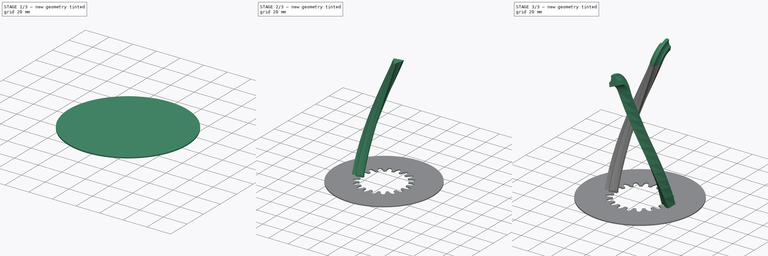
[diagram: build sequence overview — one tinted view per stage of 3, left to right]
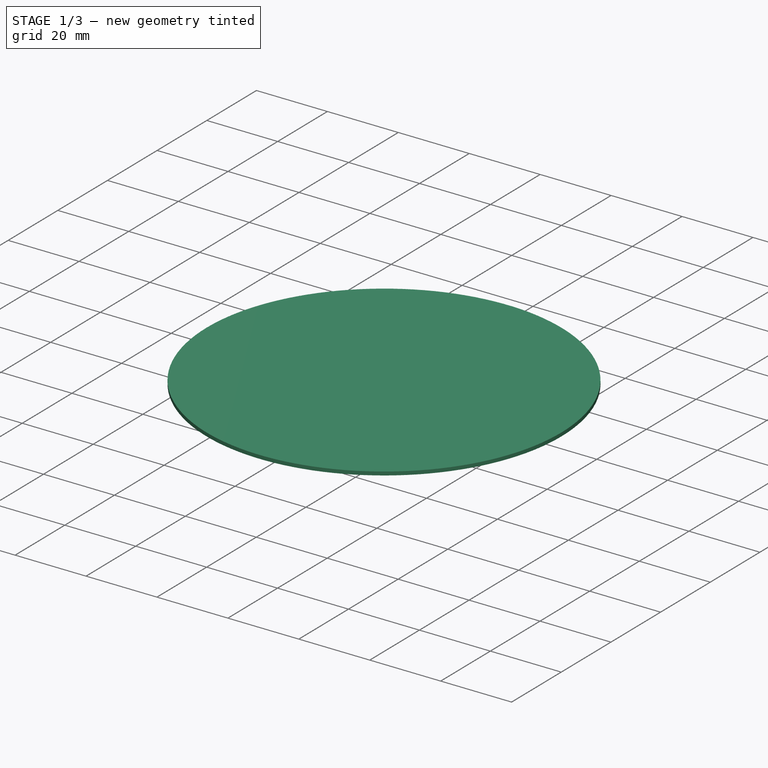
[diagram: stage 1 of 3 — iso view after this stage's code; geometry added in this stage tinted green]
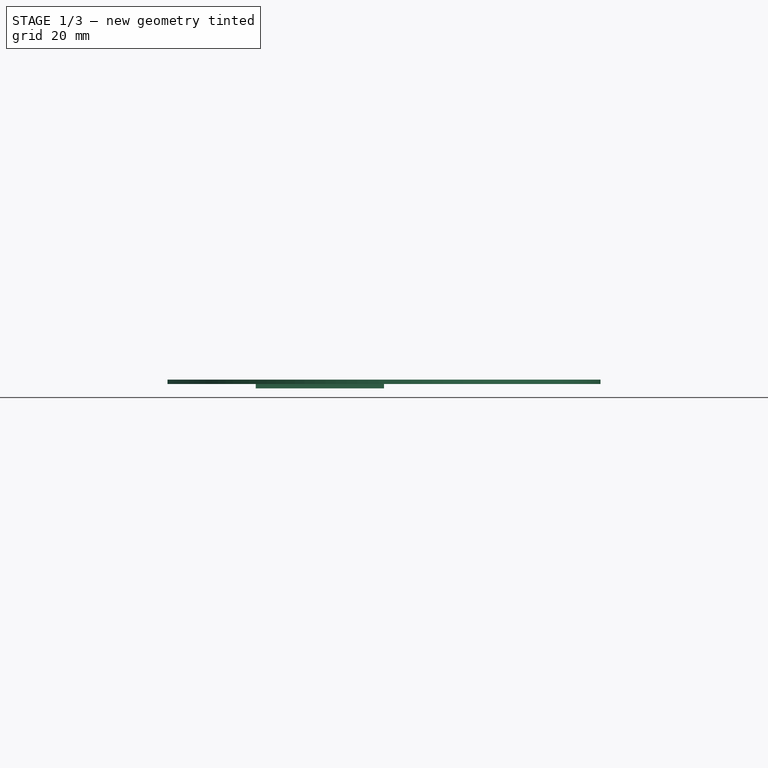
[diagram: stage 1 of 3 — front view after this stage's code; geometry added in this stage tinted green]
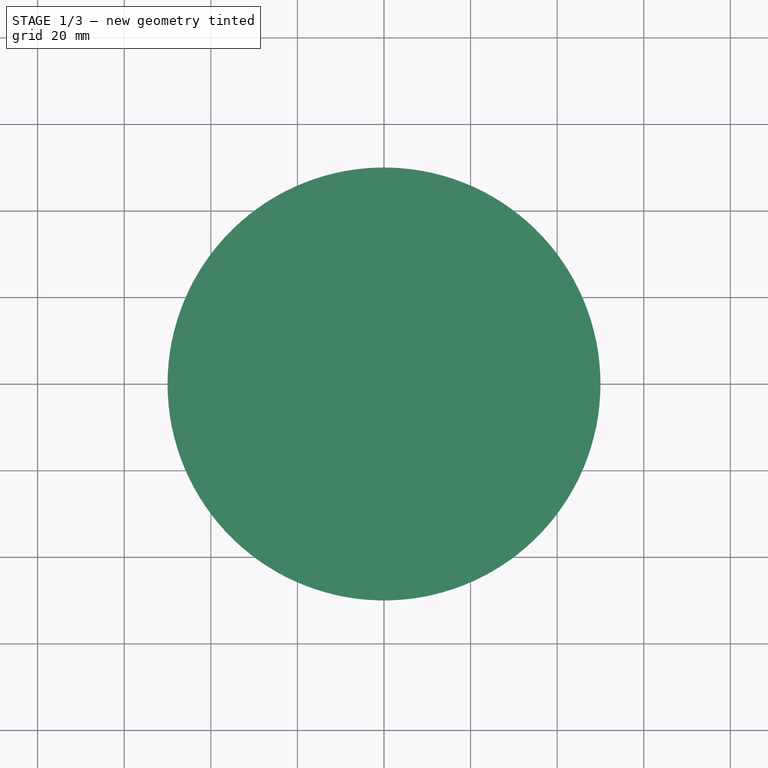
[diagram: stage 1 of 3 — top view after this stage's code; geometry added in this stage tinted green]
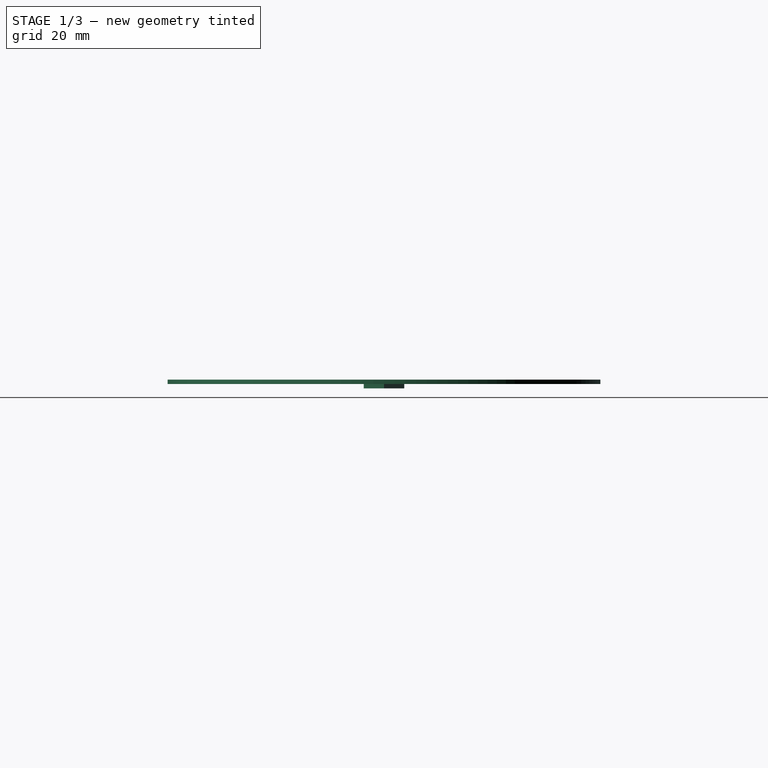
[diagram: stage 1 of 3 — right view after this stage's code; geometry added in this stage tinted green]
FCSTD DOCUMENT  (FreeCAD 0.20R29603 (Git))
Label: a19tooth-LH20deg-Involute-Spline
License: All rights reserved
LicenseURL: http://en.wikipedia.org/wiki/All_rights_reserved
objects: Sketcher::SketchObject×3, PartDesign::Pad×2, PartDesign::Point×2, PartDesign::Line×2, Part::Part2DObjectPython×1, PartDesign::Pocket×1, PartDesign::AdditiveHelix×1, PartDesign::Plane×1, PartDesign::AdditivePipe×1, PartDesign::PolarPattern×1, PartDesign::Body×1
note: 21 computed .brp shape members not serialized (recipe doc carries the construction recipe); baked Part::Feature solids carry a one-line shape summary decoded from their .brp

FEATURE [Part::Part2DObjectPython] InvoluteGear  # Draft 2D object (typed FeaturePython)
  ExternalGear = true
  HighPrecision = true
  Modules = 2.5
  NumberOfTeeth = 19
  PressureAngle = 20
FEATURE [Sketcher::SketchObject] Sketch
  FullyConstrained = true
  MapMode = 5
  Support = -> [XY_Plane]
  expr: .Constraints.PieSlice = 360 / 19 - 1
  sketch-geometry (7):
    g0: LineSegment StartX=0 StartY=0 StartZ=0 EndX=-29.6328 EndY=-4.67942 EndZ=0
    g1: LineSegment StartX=0 StartY=0 StartZ=0 EndX=-30 EndY=0 EndZ=0
    g2: LineSegment StartX=0 StartY=0 StartZ=0 EndX=-29.6328 EndY=4.67942 EndZ=0
    g3: LineSegment StartX=-29.6328 StartY=-4.67942 StartZ=0 EndX=-30 EndY=0 EndZ=0
    g4: LineSegment StartX=-30 StartY=0 StartZ=0 EndX=-29.6328 EndY=4.67942 EndZ=0
    g5: Circle CenterX=0 CenterY=0 CenterZ=0 NormalX=0 NormalY=0 NormalZ=1 AngleXU=0 Radius=30
    g6: LineSegment StartX=-29.6328 StartY=4.67942 StartZ=0 EndX=-29.6328 EndY=-4.67942 EndZ=0
  constraints (17):
    c: Coincident(g3,g0)
    c: Coincident(g3,g1)
    c: Coincident(g4,g1)
    c: Coincident(g4,g2)
    c: Equal(g3,g4)
    c: Horizontal(g1)
    c: Coincident(g1,g0)
    c: Coincident(g2,g0)
    c: Coincident(g0,g-1)
    c: Coincident(g5,g0)
    c: PointOnObject(g1,g5)
    c: PointOnObject(g2,g5)
    c: PointOnObject(g0,g5)
    c: Distance(g1) = 30  'ShaftRadius'
    c: Angle(g2,g0) = 0.313241  'PieSlice'
    c: Coincident(g6,g2)
    c: Coincident(g6,g0)
FEATURE [Sketcher::SketchObject] Sketch002
  FullyConstrained = true
  MapMode = 5
  Support = -> [XY_Plane]
  sketch-geometry (1):
    g0: Circle CenterX=0 CenterY=0 CenterZ=0 NormalX=0 NormalY=0 NormalZ=1 AngleXU=0 Radius=50
  constraints (2):
    c: Coincident(g0,g-1)
    c: Radius(g0) = 50
FEATURE [PartDesign::Pad] Pad001
  Direction = (1,1,1)
  Length = 1
  Length2 = 100
  Profile = -> Sketch002
  Reversed = true
  Type = 0
FEATURE [PartDesign::Pad] Pad
  BaseFeature = -> Pad001
  Direction = (1,1,1)
  Length = 2
  Length2 = 100
  Profile = -> Sketch
  Reversed = true
  Type = 0
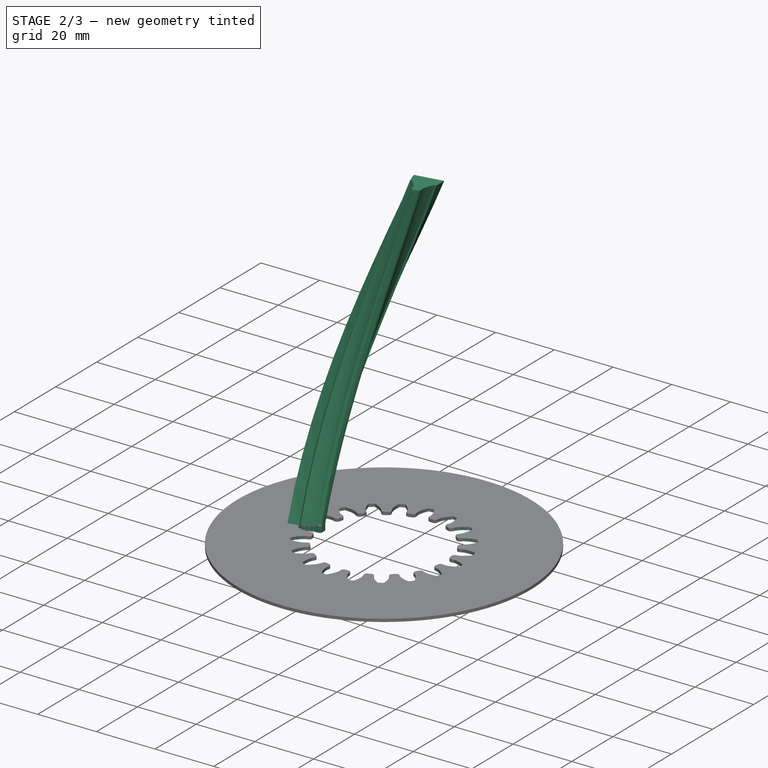
[diagram: stage 2 of 3 — iso view after this stage's code; geometry added in this stage tinted green]
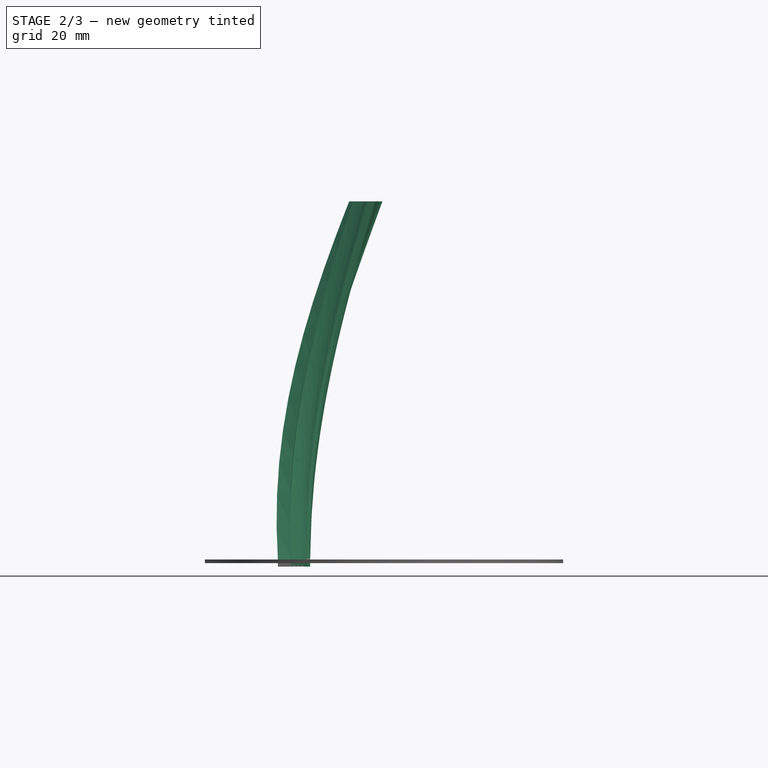
[diagram: stage 2 of 3 — front view after this stage's code; geometry added in this stage tinted green]
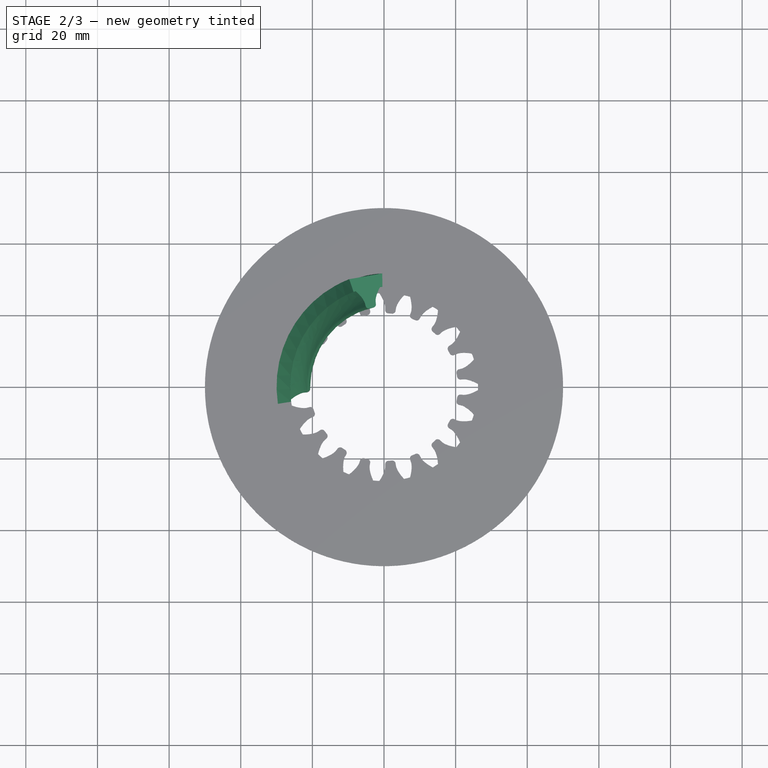
[diagram: stage 2 of 3 — top view after this stage's code; geometry added in this stage tinted green]
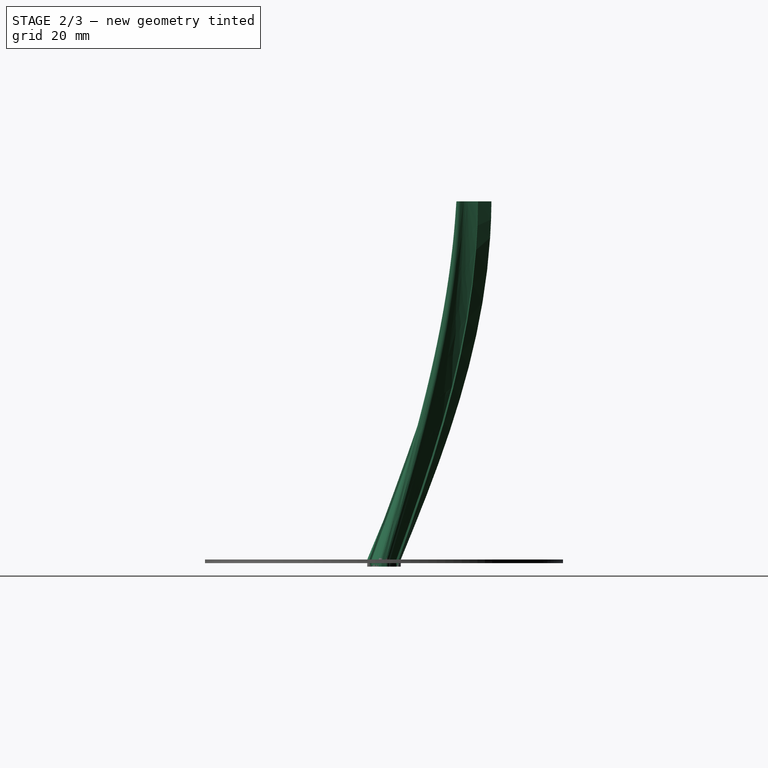
[diagram: stage 2 of 3 — right view after this stage's code; geometry added in this stage tinted green]
FEATURE [PartDesign::Pocket] Pocket
  BaseFeature = -> Pad
  Direction = (1,1,1)
  Length = 5
  Length2 = 100
  Profile = -> InvoluteGear
  Type = 1
FEATURE [PartDesign::AdditiveHelix] AdditiveHelix
  Angle = 0
  Axis = (-3e-16,3e-16,1)
  Base = (0,0,0)
  BaseFeature = -> Pocket
  Growth = 0
  HasBeenEdited = true
  Height = 100
  LeftHanded = true
  Mode = 0
  Outside = false
  Pitch = 449.438
  Profile = -> Pocket [Face4]
  ReferenceAxis = -> Z_Axis
  Turns = 0.2225
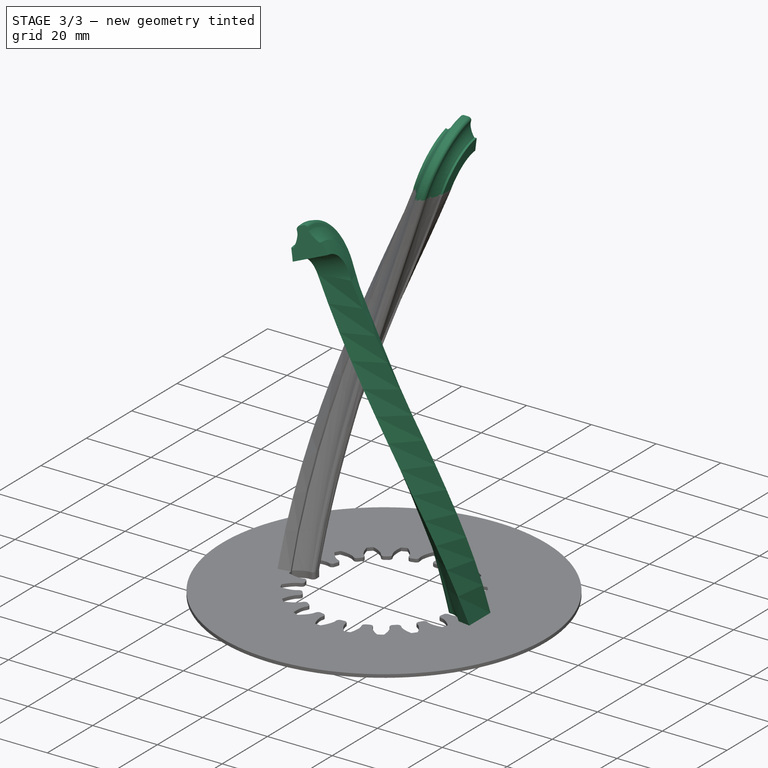
[diagram: stage 3 of 3 — iso view after this stage's code; geometry added in this stage tinted green]
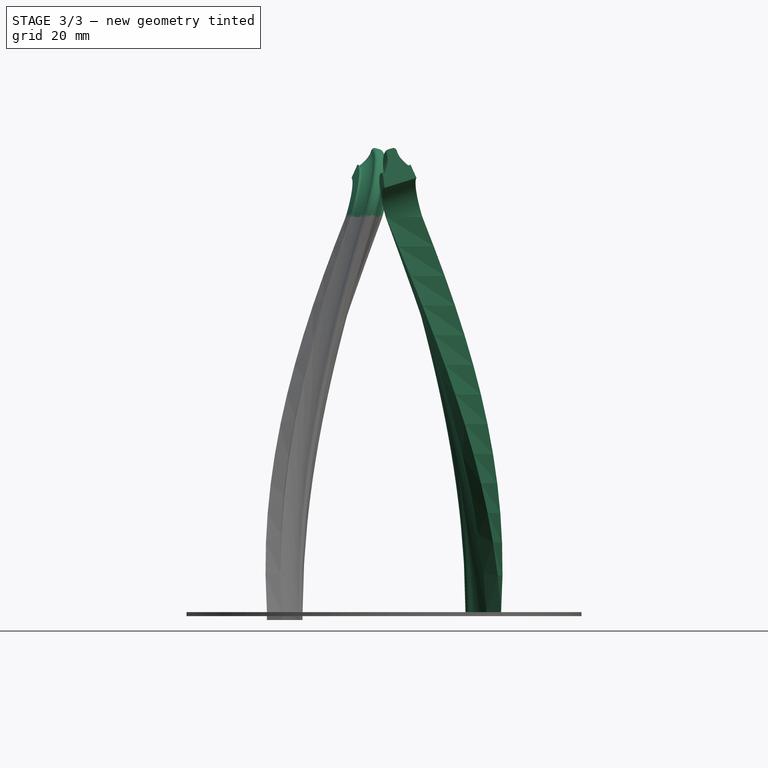
[diagram: stage 3 of 3 — front view after this stage's code; geometry added in this stage tinted green]
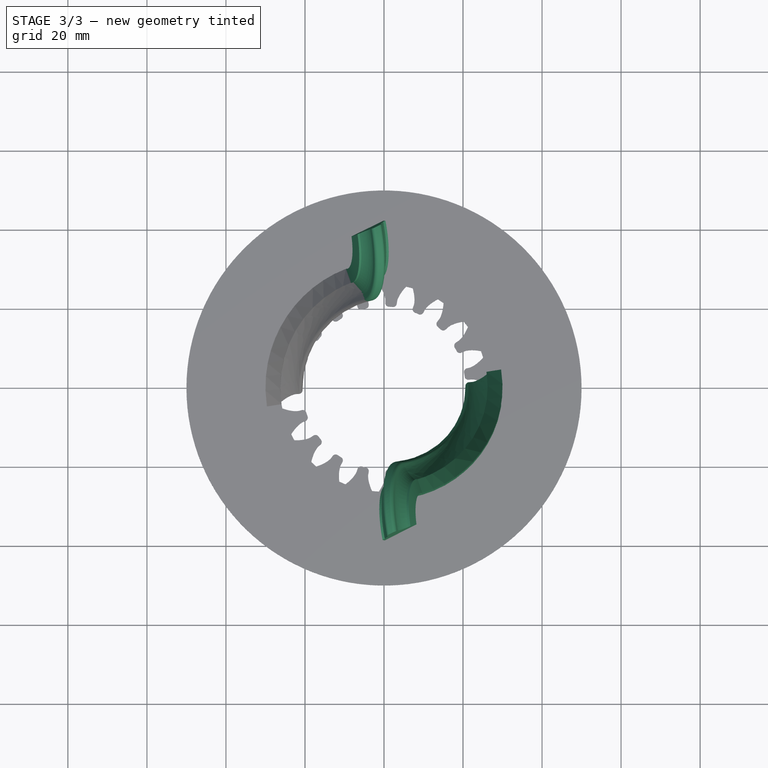
[diagram: stage 3 of 3 — top view after this stage's code; geometry added in this stage tinted green]
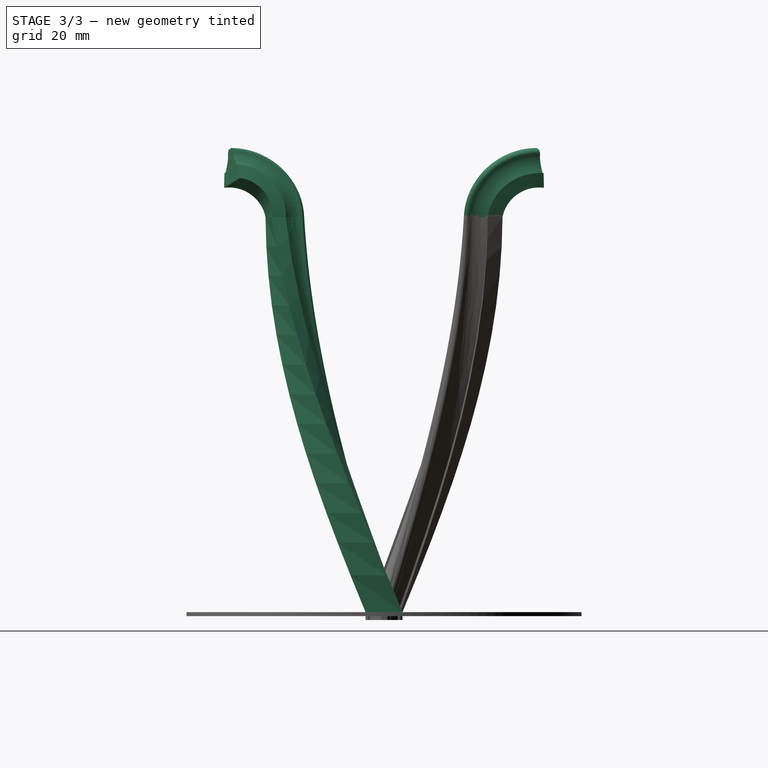
[diagram: stage 3 of 3 — right view after this stage's code; geometry added in this stage tinted green]
FEATURE [PartDesign::Point] DatumPoint
  AttacherType = Attacher::AttachEnginePoint
  MapMode = 37
  Placement = pos=(-3.55136,20.311,100) rot=(0,0,1;0rad)
  Support = -> [AdditiveHelix]
FEATURE [PartDesign::Point] DatumPoint001
  AttacherType = Attacher::AttachEnginePoint
  MapMode = 37
  Placement = pos=(-5.10397,29.1902,100) rot=(0,0,1;0rad)
  Support = -> [AdditiveHelix]
FEATURE [PartDesign::Line] DatumLine
  AttacherType = Attacher::AttachEngineLine
  Length = 20
  MapMode = 29
  Placement = pos=(-3.55136,20.311,100) rot=(-0.061242,0.705778,0.705781;3.26392rad)
  ResizeMode = 0
  Support = -> [DatumPoint,DatumPoint001]
FEATURE [PartDesign::Line] DatumLine001
  AttacherType = Attacher::AttachEngineLine
  Length = 20
  MapMode = 24
  Placement = pos=(-4.04537,20.2246,100) rot=(0.770316,-0.631427,-0.088957;2.92539rad)
  ResizeMode = 0
  Support = -> [AdditiveHelix]
FEATURE [PartDesign::Plane] DatumPlane
  Length = 143.339
  MapMode = 14
  Placement = pos=(-4.00785,20.2321,100.133) rot=(0.581322,-0.489493,-0.64997;1.82685rad)
  ResizeMode = 0
  Support = -> [DatumLine001,DatumLine]
  Width = 197.099
FEATURE [Sketcher::SketchObject] Sketch003
  FullyConstrained = true
  MapMode = 5
  Placement = pos=(-4.00785,20.2321,100.133) rot=(0.581322,-0.489493,-0.64997;1.82685rad)
  Support = -> [DatumPlane]
  sketch-geometry (1):
    g0: ArcOfCircle CenterX=-18 CenterY=-2e-16 CenterZ=0 NormalX=0 NormalY=0 NormalZ=1 AngleXU=0 Radius=18 StartAngle=0 EndAngle=1.5708
  constraints (5):
    c: Vertical(g0,g0)
    c: Horizontal(g0,g0)
    c: Radius(g0) = 18
    c: PointOnObject(g0,g-2)
    c: PointOnObject(g0,g-1)
FEATURE [PartDesign::AdditivePipe] AdditivePipe
  AuxilleryCurvelinear = true
  AuxillerySpineTangent = false
  BaseFeature = -> AdditiveHelix
  Binormal = (0,0,0)
  Mode = 0
  Profile = -> AdditiveHelix [Face192]
  Spine = -> Sketch003 [Edge1]
  SpineTangent = false
  Transformation = 0
  Transition = 0
FEATURE [PartDesign::PolarPattern] PolarPattern
  Angle = 360
  Axis = -> Z_Axis
  BaseFeature = -> AdditivePipe
  Occurrences = 2
  Originals = -> [AdditiveHelix,AdditivePipe]
FEATURE [PartDesign::Body] Body
  Group = -> [Pad001,InvoluteGear,Sketch,Sketch002,Pad,Pocket,AdditiveHelix,DatumPoint,DatumPoint001,DatumLine,DatumLine001,DatumPlane,Sketch003,AdditivePipe,PolarPattern]
  Origin = -> Origin
  Tip = -> PolarPattern
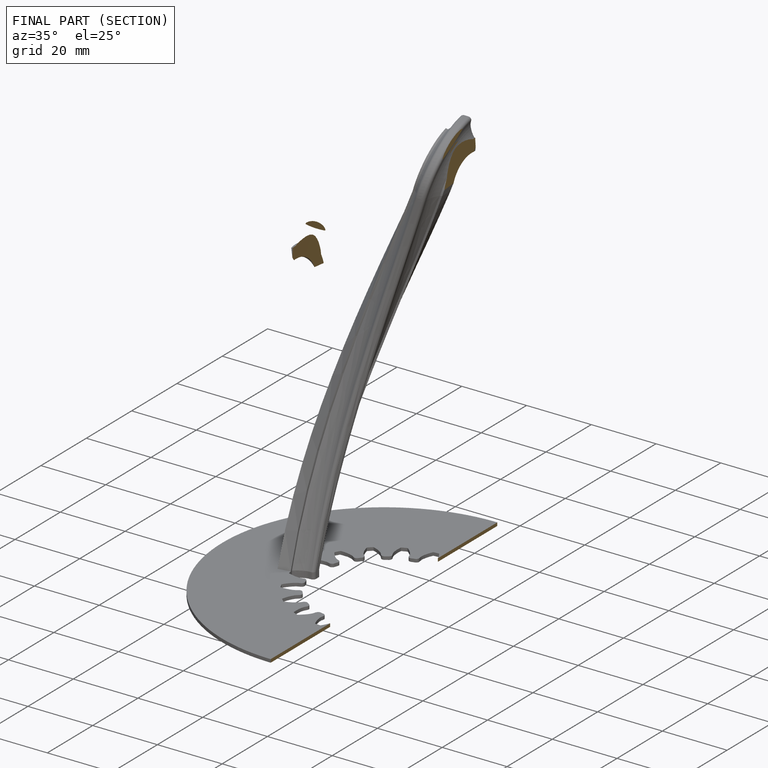
[diagram: finished part — half-section view (interior)]
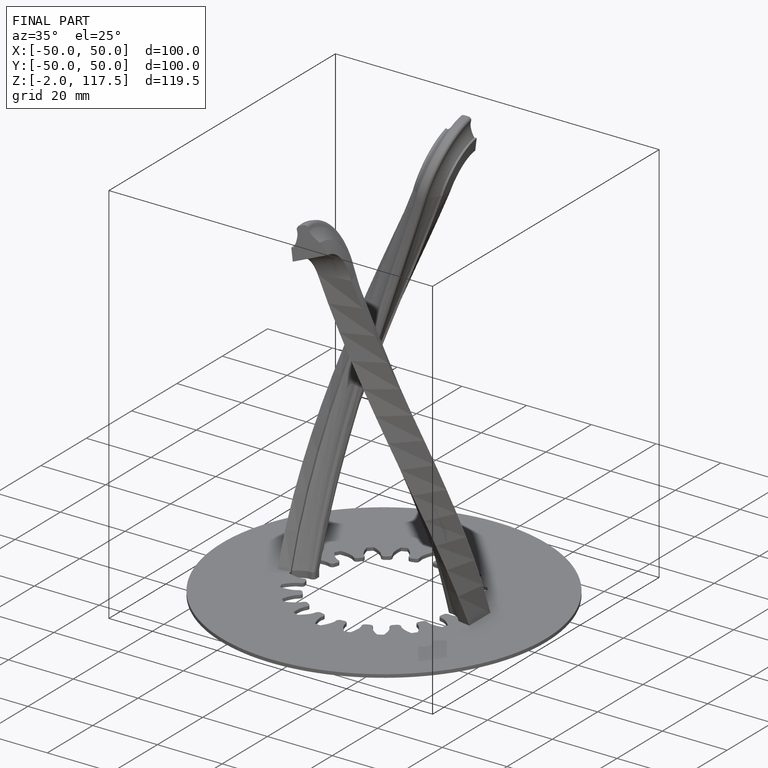
[diagram: finished part — iso view with bounding-box wireframe]
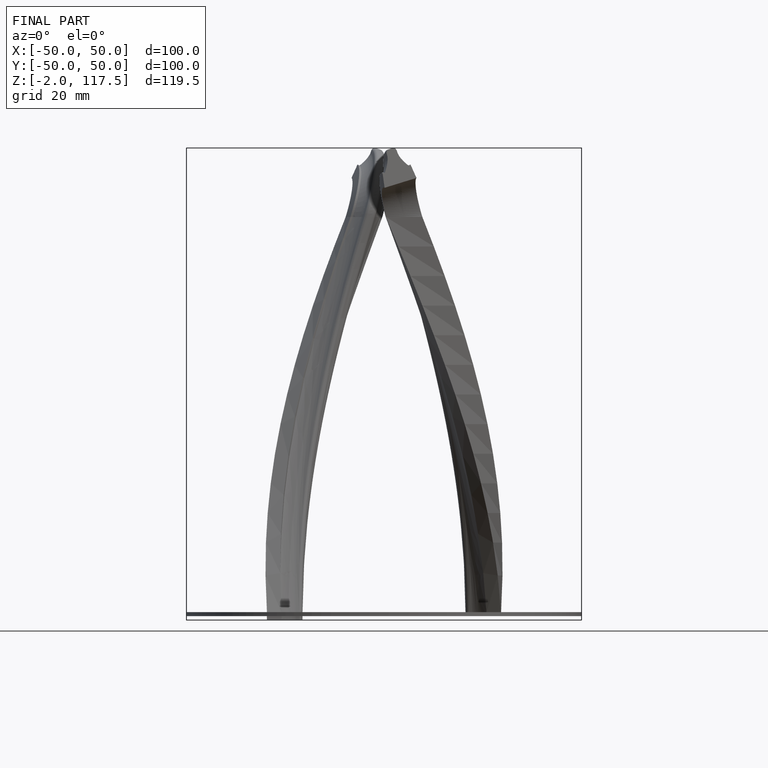
[diagram: finished part — front view with bounding-box wireframe]
